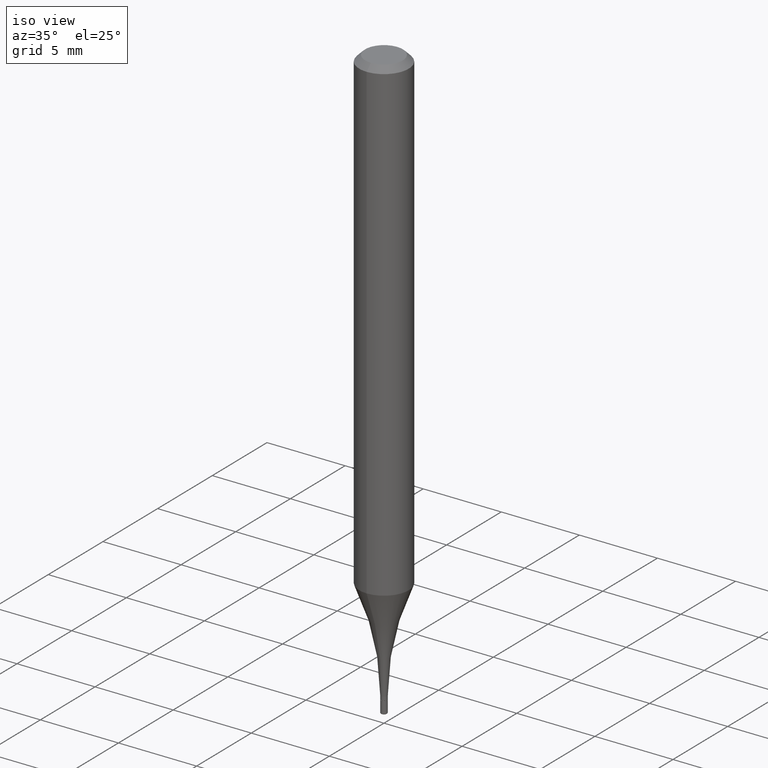
[diagram: clean part render]
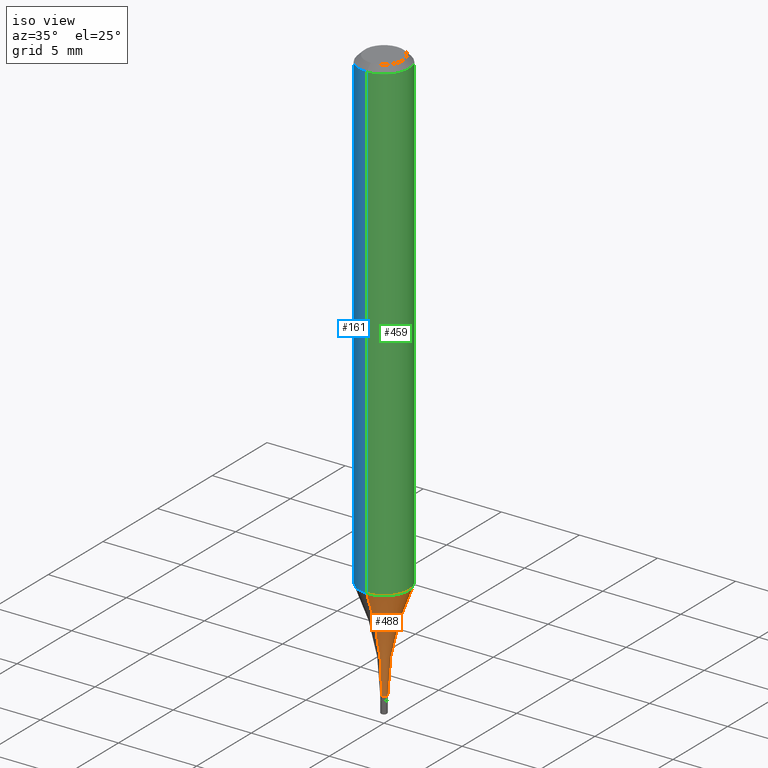
[diagram: same view with three faces highlighted in distinct colors, each labeled with its STEP entity id]
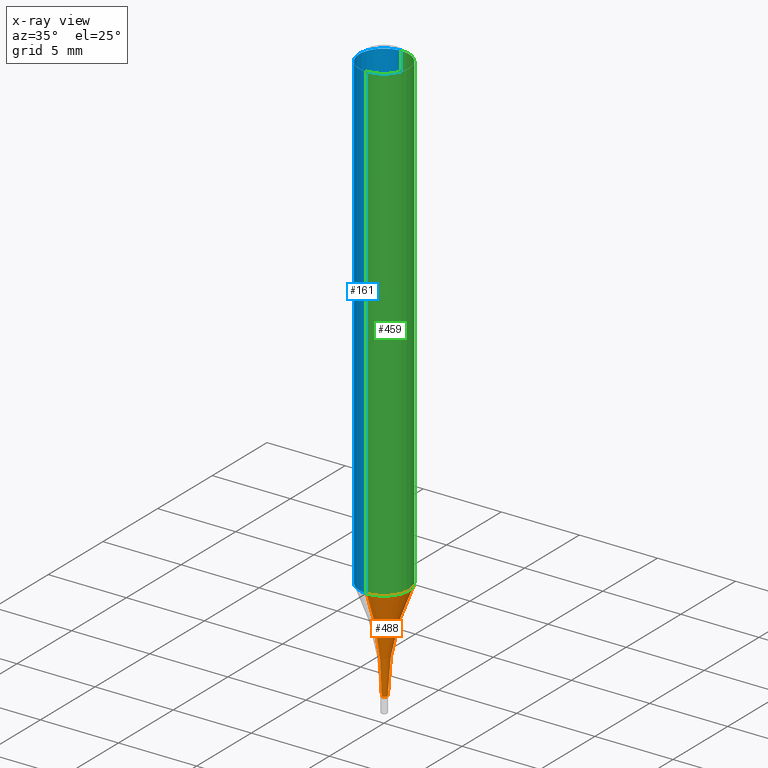
[diagram: x-ray of the same camera — body ghosted, the three highlighted faces saturated]
A machine part, iso view with three faces highlighted in distinct colors.
The next image is the same camera in x-ray (body ghosted, the three faces saturated) — at least one of them is partly hidden behind the body in this view.
Their STEP definitions:

[orange] entity #488 — the highlighted toroidal blend (fillet) surface has major radius 16.0731 mm and minor (blend) radius 15.875 mm.
#18 = ORIENTED_EDGE ( 'NONE', *, *, #42, .T. ) ;
#23 = CIRCLE ( 'NONE', #82, 0.6250000000000000000 ) ;
#42 = EDGE_CURVE ( 'NONE', #326, #233, #185, .T. ) ;
#60 = ORIENTED_EDGE ( 'NONE', *, *, #327, .T. ) ;
#67 = AXIS2_PLACEMENT_3D ( 'NONE', #408, #207, #369 ) ;
#82 = AXIS2_PLACEMENT_3D ( 'NONE', #246, #320, #412 ) ;
#91 = CIRCLE ( 'NONE', #157, 0.06250000000000001388 ) ;
#92 = DIRECTION ( 'NONE',  ( -6.982962677686265922E-15, -1.000000000000000000, 4.370956789862820361E-15 ) ) ;
#106 = EDGE_CURVE ( 'NONE', #186, #478, #91, .T. ) ;
#134 = FACE_OUTER_BOUND ( 'NONE', #171, .T. ) ;
#157 = AXIS2_PLACEMENT_3D ( 'NONE', #217, #297, #92 ) ;
#171 = EDGE_LOOP ( 'NONE', ( #448, #222, #60, #18 ) ) ;
#185 = CIRCLE ( 'NONE', #499, 0.007799999999999985764 ) ;
#186 = VERTEX_POINT ( 'NONE', #461 ) ;
#207 = DIRECTION ( 'NONE',  ( 1.000000000000000000, -7.105427357601001070E-15, 4.926342672693569514E-29 ) ) ;
#210 = DIRECTION ( 'NONE',  ( -2.443919900360709498E-29, 3.493699460141969769E-15, 1.000000000000000000 ) ) ;
#217 = CARTESIAN_POINT ( 'NONE',  ( 2.940766808977116365E-29, -4.203965691105655160E-15, -1.203299178726387586 ) ) ;
#220 = DIRECTION ( 'NONE',  ( -6.982962677686265922E-15, -1.000000000000000000, 0.000000000000000000 ) ) ;
#222 = ORIENTED_EDGE ( 'NONE', *, *, #106, .F. ) ;
#229 = CARTESIAN_POINT ( 'NONE',  ( 2.497557716197074649E-16, 0.007799999999994888279, -1.459000000000000297 ) ) ;
#233 = VERTEX_POINT ( 'NONE', #229 ) ;
#246 = CARTESIAN_POINT ( 'NONE',  ( -4.418818782439833684E-15, -0.6328000000000050251, -1.458999999999998076 ) ) ;
#248 = CARTESIAN_POINT ( 'NONE',  ( -5.446710888591711359E-17, -0.007800000000005083249, -1.459000000000000297 ) ) ;
#250 = DIRECTION ( 'NONE',  ( -2.443919900360709498E-29, 3.493699460141969769E-15, 1.000000000000000000 ) ) ;
#293 = CIRCLE ( 'NONE', #67, 0.6250000000000000000 ) ;
#297 = DIRECTION ( 'NONE',  ( -2.443919900360709498E-29, 3.493699460141969769E-15, 1.000000000000000000 ) ) ;
#320 = DIRECTION ( 'NONE',  ( -1.000000000000000000, 6.982962677686265922E-15, -4.883557194083112340E-29 ) ) ;
#326 = VERTEX_POINT ( 'NONE', #248 ) ;
#327 = EDGE_CURVE ( 'NONE', #186, #326, #23, .T. ) ;
#329 = CARTESIAN_POINT ( 'NONE',  ( 3.567938988224114792E-29, -5.094071273372150151E-15, -1.459000000000000297 ) ) ;
#365 = TOROIDAL_SURFACE ( 'NONE', #431, 0.6328000000000000291, 0.6250000000000000000 ) ;
#369 = DIRECTION ( 'NONE',  ( 7.105427357601000281E-15, 1.000000000000000000, 0.000000000000000000 ) ) ;
#377 = DIRECTION ( 'NONE',  ( -6.982962677686265922E-15, -1.000000000000000000, 3.493699460141969375E-15 ) ) ;
#385 = CARTESIAN_POINT ( 'NONE',  ( 4.440892098500921985E-16, 0.06249999999999582972, -1.203299178726387586 ) ) ;
#408 = CARTESIAN_POINT ( 'NONE',  ( 4.496314431889948893E-15, 0.6327999999999949221, -1.459000000000002295 ) ) ;
#412 = DIRECTION ( 'NONE',  ( -6.982962677686265133E-15, -1.000000000000000000, 0.000000000000000000 ) ) ;
#431 = AXIS2_PLACEMENT_3D ( 'NONE', #329, #210, #377 ) ;
#448 = ORIENTED_EDGE ( 'NONE', *, *, #455, .F. ) ;
#455 = EDGE_CURVE ( 'NONE', #478, #233, #293, .T. ) ;
#461 = CARTESIAN_POINT ( 'NONE',  ( -4.364351673553626788E-16, -0.06250000000000423273, -1.203299178726387364 ) ) ;
#478 = VERTEX_POINT ( 'NONE', #385 ) ;
#488 = ADVANCED_FACE ( 'NONE', ( #134 ), #365, .F. ) ;
#494 = CARTESIAN_POINT ( 'NONE',  ( 3.565679134626275915E-29, -5.097307512347135368E-15, -1.459000000000000297 ) ) ;
#499 = AXIS2_PLACEMENT_3D ( 'NONE', #494, #250, #220 ) ;

[blue] entity #161 — the highlighted cylindrical surface (edge-blend (fillet) strip) has radius 1.5875 mm, axis along (-0, 0, 1).
#7 = DIRECTION ( 'NONE',  ( -2.443919900360709498E-29, 3.493699460141969375E-15, 1.000000000000000000 ) ) ;
#26 = EDGE_CURVE ( 'NONE', #478, #298, #102, .T. ) ;
#28 = DIRECTION ( 'NONE',  ( -6.982962677686265922E-15, -1.000000000000000000, 4.370956789862820361E-15 ) ) ;
#31 = CARTESIAN_POINT ( 'NONE',  ( 3.665879850540992079E-31, -5.240549190212850327E-17, -0.01499999999999970281 ) ) ;
#54 = AXIS2_PLACEMENT_3D ( 'NONE', #111, #64, #28 ) ;
#57 = AXIS2_PLACEMENT_3D ( 'NONE', #31, #152, #198 ) ;
#64 = DIRECTION ( 'NONE',  ( -2.443919900360709498E-29, 3.493699460141969769E-15, 1.000000000000000000 ) ) ;
#69 = DIRECTION ( 'NONE',  ( -6.982962677686265133E-15, -1.000000000000000000, 3.493699460141969375E-15 ) ) ;
#102 = LINE ( 'NONE', #213, #336 ) ;
#111 = CARTESIAN_POINT ( 'NONE',  ( 2.940766808977116365E-29, -4.203965691105655160E-15, -1.203299178726387586 ) ) ;
#112 = AXIS2_PLACEMENT_3D ( 'NONE', #138, #403, #69 ) ;
#124 = LINE ( 'NONE', #477, #395 ) ;
#138 = CARTESIAN_POINT ( 'NONE',  ( 0.000000000000000000, 0.000000000000000000, 0.000000000000000000 ) ) ;
#141 = ORIENTED_EDGE ( 'NONE', *, *, #308, .F. ) ;
#148 = ORIENTED_EDGE ( 'NONE', *, *, #174, .T. ) ;
#152 = DIRECTION ( 'NONE',  ( -2.443919900360709498E-29, 3.493699460141969769E-15, 1.000000000000000000 ) ) ;
#161 = ADVANCED_FACE ( 'NONE', ( #489 ), #378, .T. ) ;
#174 = EDGE_CURVE ( 'NONE', #478, #186, #310, .T. ) ;
#186 = VERTEX_POINT ( 'NONE', #461 ) ;
#198 = DIRECTION ( 'NONE',  ( -6.982962677686265922E-15, -1.000000000000000000, 3.483106191921935554E-15 ) ) ;
#213 = CARTESIAN_POINT ( 'NONE',  ( 4.440892098500626162E-16, 0.06250000000000001388, -2.183562162588731352E-16 ) ) ;
#253 = CIRCLE ( 'NONE', #57, 0.06250000000000000000 ) ;
#263 = ORIENTED_EDGE ( 'NONE', *, *, #26, .F. ) ;
#274 = CARTESIAN_POINT ( 'NONE',  ( 4.364351673553919652E-16, 0.06249999999999995143, -0.01499999999999992138 ) ) ;
#298 = VERTEX_POINT ( 'NONE', #274 ) ;
#300 = ORIENTED_EDGE ( 'NONE', *, *, #415, .T. ) ;
#306 = VERTEX_POINT ( 'NONE', #359 ) ;
#308 = EDGE_CURVE ( 'NONE', #298, #306, #253, .T. ) ;
#310 = CIRCLE ( 'NONE', #54, 0.06250000000000001388 ) ;
#336 = VECTOR ( 'NONE', #7, 39.37007874015748143 ) ;
#359 = CARTESIAN_POINT ( 'NONE',  ( -4.287811248607203282E-16, -0.06250000000000005551, -0.01499999999999948597 ) ) ;
#378 = CYLINDRICAL_SURFACE ( 'NONE', #112, 0.06250000000000001388 ) ;
#385 = CARTESIAN_POINT ( 'NONE',  ( 4.440892098500921985E-16, 0.06249999999999582972, -1.203299178726387586 ) ) ;
#395 = VECTOR ( 'NONE', #411, 39.37007874015748143 ) ;
#403 = DIRECTION ( 'NONE',  ( -2.443919900360709498E-29, 3.493699460141969769E-15, 1.000000000000000000 ) ) ;
#411 = DIRECTION ( 'NONE',  ( -2.443919900360709498E-29, 3.493699460141969375E-15, 1.000000000000000000 ) ) ;
#415 = EDGE_CURVE ( 'NONE', #186, #306, #124, .T. ) ;
#422 = EDGE_LOOP ( 'NONE', ( #263, #148, #300, #141 ) ) ;
#461 = CARTESIAN_POINT ( 'NONE',  ( -4.364351673553626788E-16, -0.06250000000000423273, -1.203299178726387364 ) ) ;
#477 = CARTESIAN_POINT ( 'NONE',  ( -4.364351673553916694E-16, -0.06250000000000001388, 2.183562162588731352E-16 ) ) ;
#478 = VERTEX_POINT ( 'NONE', #385 ) ;
#489 = FACE_OUTER_BOUND ( 'NONE', #422, .T. ) ;

[green] entity #459 — the highlighted cylindrical surface (edge-blend (fillet) strip) has radius 1.5875 mm, axis along (-0, 0, 1).
#7 = DIRECTION ( 'NONE',  ( -2.443919900360709498E-29, 3.493699460141969375E-15, 1.000000000000000000 ) ) ;
#26 = EDGE_CURVE ( 'NONE', #478, #298, #102, .T. ) ;
#80 = DIRECTION ( 'NONE',  ( -2.443919900360709498E-29, 3.493699460141969769E-15, 1.000000000000000000 ) ) ;
#91 = CIRCLE ( 'NONE', #157, 0.06250000000000001388 ) ;
#92 = DIRECTION ( 'NONE',  ( -6.982962677686265922E-15, -1.000000000000000000, 4.370956789862820361E-15 ) ) ;
#102 = LINE ( 'NONE', #213, #336 ) ;
#106 = EDGE_CURVE ( 'NONE', #186, #478, #91, .T. ) ;
#120 = DIRECTION ( 'NONE',  ( -6.982962677686265922E-15, -1.000000000000000000, 3.483106191921935554E-15 ) ) ;
#124 = LINE ( 'NONE', #477, #395 ) ;
#126 = CYLINDRICAL_SURFACE ( 'NONE', #139, 0.06250000000000001388 ) ;
#139 = AXIS2_PLACEMENT_3D ( 'NONE', #280, #80, #180 ) ;
#157 = AXIS2_PLACEMENT_3D ( 'NONE', #217, #297, #92 ) ;
#166 = FACE_OUTER_BOUND ( 'NONE', #295, .T. ) ;
#180 = DIRECTION ( 'NONE',  ( -6.982962677686265133E-15, -1.000000000000000000, 3.493699460141969375E-15 ) ) ;
#184 = CIRCLE ( 'NONE', #282, 0.06250000000000000000 ) ;
#186 = VERTEX_POINT ( 'NONE', #461 ) ;
#200 = ORIENTED_EDGE ( 'NONE', *, *, #407, .F. ) ;
#213 = CARTESIAN_POINT ( 'NONE',  ( 4.440892098500626162E-16, 0.06250000000000001388, -2.183562162588731352E-16 ) ) ;
#217 = CARTESIAN_POINT ( 'NONE',  ( 2.940766808977116365E-29, -4.203965691105655160E-15, -1.203299178726387586 ) ) ;
#274 = CARTESIAN_POINT ( 'NONE',  ( 4.364351673553919652E-16, 0.06249999999999995143, -0.01499999999999992138 ) ) ;
#280 = CARTESIAN_POINT ( 'NONE',  ( 0.000000000000000000, 0.000000000000000000, 0.000000000000000000 ) ) ;
#282 = AXIS2_PLACEMENT_3D ( 'NONE', #472, #437, #120 ) ;
#295 = EDGE_LOOP ( 'NONE', ( #338, #493, #200, #342 ) ) ;
#297 = DIRECTION ( 'NONE',  ( -2.443919900360709498E-29, 3.493699460141969769E-15, 1.000000000000000000 ) ) ;
#298 = VERTEX_POINT ( 'NONE', #274 ) ;
#306 = VERTEX_POINT ( 'NONE', #359 ) ;
#336 = VECTOR ( 'NONE', #7, 39.37007874015748143 ) ;
#338 = ORIENTED_EDGE ( 'NONE', *, *, #106, .T. ) ;
#342 = ORIENTED_EDGE ( 'NONE', *, *, #415, .F. ) ;
#359 = CARTESIAN_POINT ( 'NONE',  ( -4.287811248607203282E-16, -0.06250000000000005551, -0.01499999999999948597 ) ) ;
#385 = CARTESIAN_POINT ( 'NONE',  ( 4.440892098500921985E-16, 0.06249999999999582972, -1.203299178726387586 ) ) ;
#395 = VECTOR ( 'NONE', #411, 39.37007874015748143 ) ;
#407 = EDGE_CURVE ( 'NONE', #306, #298, #184, .T. ) ;
#411 = DIRECTION ( 'NONE',  ( -2.443919900360709498E-29, 3.493699460141969375E-15, 1.000000000000000000 ) ) ;
#415 = EDGE_CURVE ( 'NONE', #186, #306, #124, .T. ) ;
#437 = DIRECTION ( 'NONE',  ( -2.443919900360709498E-29, 3.493699460141969769E-15, 1.000000000000000000 ) ) ;
#459 = ADVANCED_FACE ( 'NONE', ( #166 ), #126, .T. ) ;
#461 = CARTESIAN_POINT ( 'NONE',  ( -4.364351673553626788E-16, -0.06250000000000423273, -1.203299178726387364 ) ) ;
#472 = CARTESIAN_POINT ( 'NONE',  ( 3.665879850540992079E-31, -5.240549190212850327E-17, -0.01499999999999970281 ) ) ;
#477 = CARTESIAN_POINT ( 'NONE',  ( -4.364351673553916694E-16, -0.06250000000000001388, 2.183562162588731352E-16 ) ) ;
#478 = VERTEX_POINT ( 'NONE', #385 ) ;
#493 = ORIENTED_EDGE ( 'NONE', *, *, #26, .T. ) ;